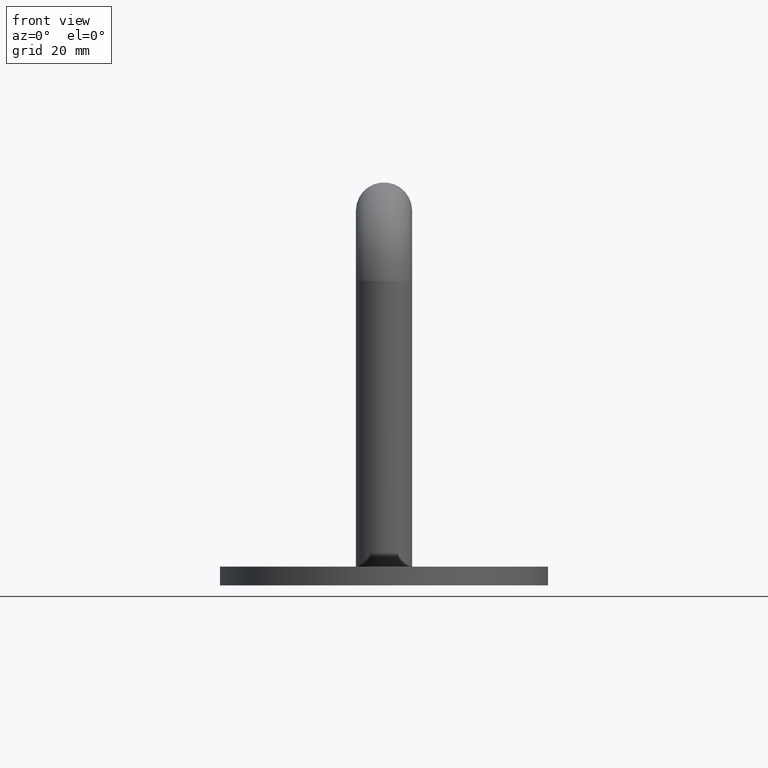
[diagram: clean part render]
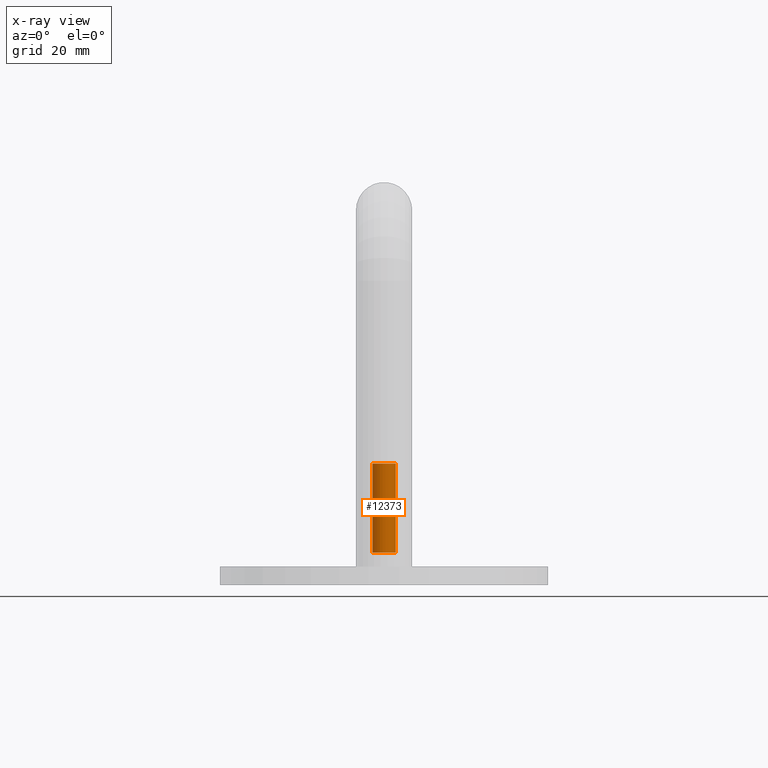
[diagram: x-ray — body ghosted, one internal face saturated and labeled with its STEP entity id]
A machine part, front view, then the same camera in x-ray: the body is ghosted and one INTERNAL B-rep face — a face not visible from any outside direction — is saturated and labeled: STEP entity #12373.
In plain terms, the highlighted cylindrical surface (bore or boss wall) has radius 2.5 mm, axis along (-0, -0, -1).
Its self-contained STEP definition (entity closure, byte-faithful):
#1378 = CARTESIAN_POINT ( 'NONE',  ( 0.000000000000000000, 0.000000000000000000, 3.000000000000002665 ) ) ;
#1547 = VERTEX_POINT ( 'NONE', #3071 ) ;
#2499 = DIRECTION ( 'NONE',  ( -1.000000000000000000, 0.000000000000000000, 0.000000000000000000 ) ) ;
#2559 = DIRECTION ( 'NONE',  ( -0.000000000000000000, -0.000000000000000000, -1.000000000000000000 ) ) ;
#3071 = CARTESIAN_POINT ( 'NONE',  ( -2.499999999999994671, 0.000000000000000000, 22.00000000000000000 ) ) ;
#3742 = CIRCLE ( 'NONE', #10240, 2.499999999999994671 ) ;
#3837 = DIRECTION ( 'NONE',  ( 0.000000000000000000, 0.000000000000000000, 1.000000000000000000 ) ) ;
#4023 = EDGE_CURVE ( 'NONE', #1547, #1547, #3742, .T. ) ;
#5183 = FACE_OUTER_BOUND ( 'NONE', #11154, .T. ) ;
#5530 = CARTESIAN_POINT ( 'NONE',  ( 0.000000000000000000, 0.000000000000000000, 0.000000000000000000 ) ) ;
#6174 = EDGE_LOOP ( 'NONE', ( #18057 ) ) ;
#7124 = CIRCLE ( 'NONE', #9828, 2.499999999999996003 ) ;
#7753 = VERTEX_POINT ( 'NONE', #15907 ) ;
#9828 = AXIS2_PLACEMENT_3D ( 'NONE', #1378, #3837, #14098 ) ;
#10240 = AXIS2_PLACEMENT_3D ( 'NONE', #17017, #18200, #12575 ) ;
#11154 = EDGE_LOOP ( 'NONE', ( #16880 ) ) ;
#12047 = FACE_OUTER_BOUND ( 'NONE', #6174, .T. ) ;
#12373 = ADVANCED_FACE ( 'NONE', ( #5183, #12047 ), #13573, .F. ) ;
#12575 = DIRECTION ( 'NONE',  ( -1.000000000000000000, 0.000000000000000000, 0.000000000000000000 ) ) ;
#13573 = CYLINDRICAL_SURFACE ( 'NONE', #16648, 2.499999999999996003 ) ;
#14098 = DIRECTION ( 'NONE',  ( -1.000000000000000000, 0.000000000000000000, 0.000000000000000000 ) ) ;
#15907 = CARTESIAN_POINT ( 'NONE',  ( -2.499999999999996003, 0.000000000000000000, 3.000000000000002665 ) ) ;
#16427 = EDGE_CURVE ( 'NONE', #7753, #7753, #7124, .T. ) ;
#16648 = AXIS2_PLACEMENT_3D ( 'NONE', #5530, #2559, #2499 ) ;
#16880 = ORIENTED_EDGE ( 'NONE', *, *, #4023, .F. ) ;
#17017 = CARTESIAN_POINT ( 'NONE',  ( 0.000000000000000000, 0.000000000000000000, 22.00000000000000000 ) ) ;
#18057 = ORIENTED_EDGE ( 'NONE', *, *, #16427, .F. ) ;
#18200 = DIRECTION ( 'NONE',  ( -0.000000000000000000, -0.000000000000000000, -1.000000000000000000 ) ) ;